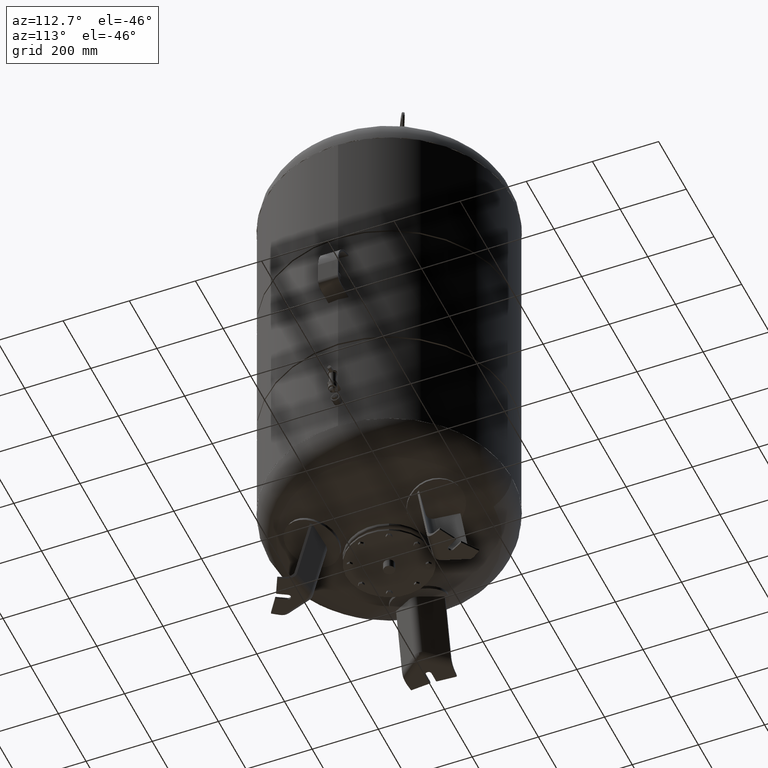
[diagram: clean part render]
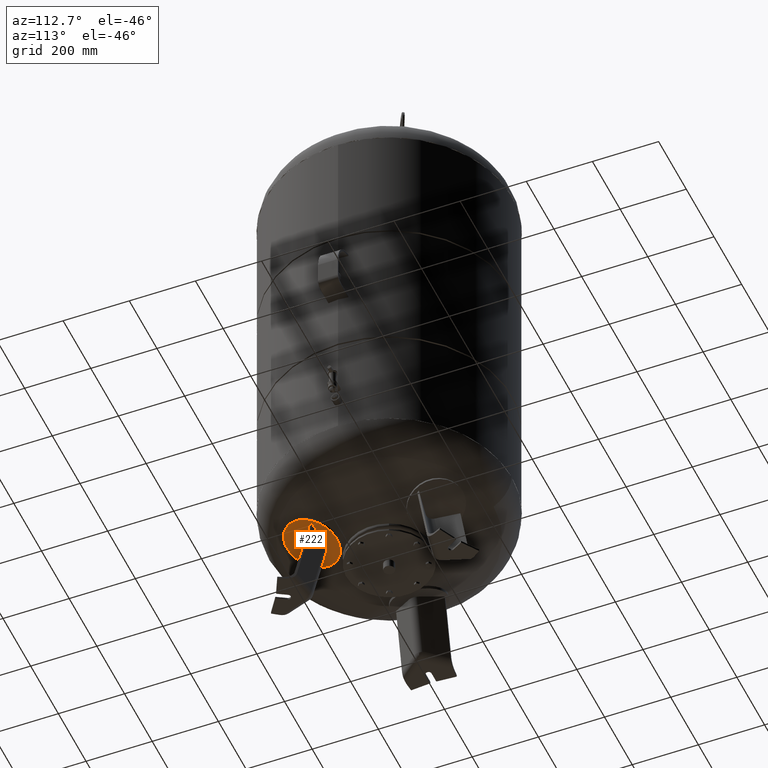
[diagram: same view with one face highlighted and labeled with its STEP entity id]
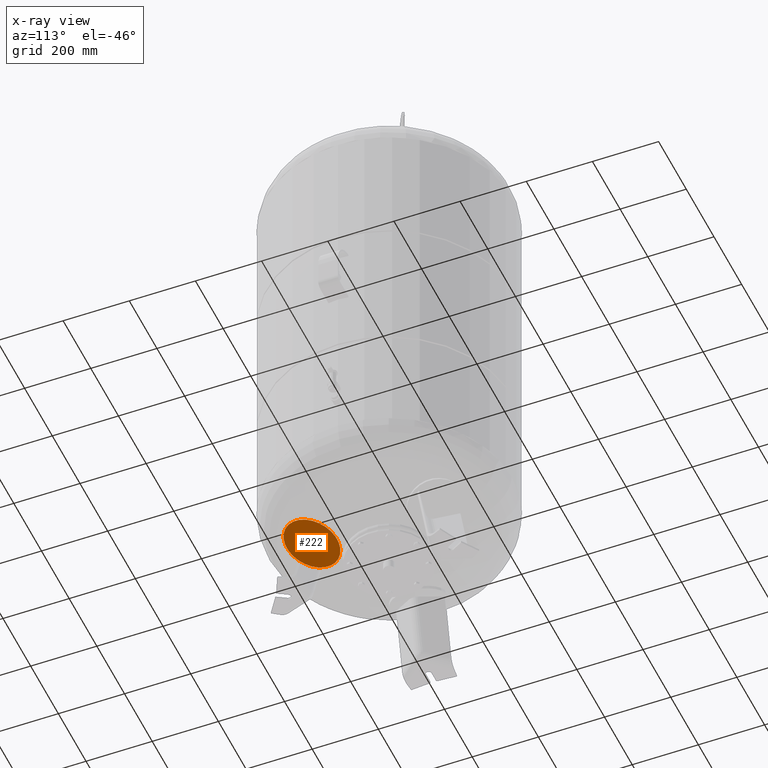
[diagram: x-ray of the same camera — body ghosted, the highlighted face saturated]
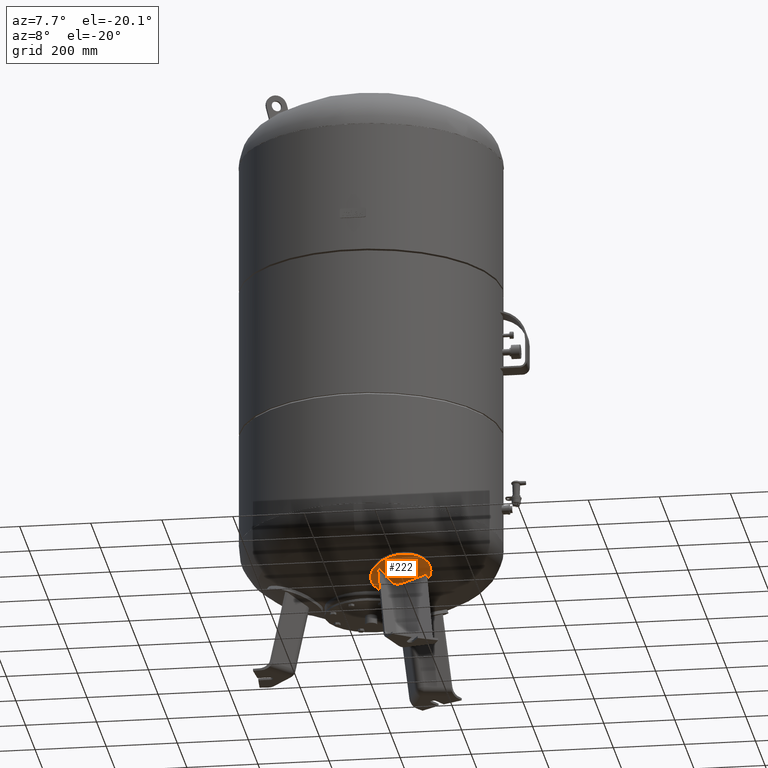
[diagram: same view with one face highlighted and labeled with its STEP entity id]
A machine part, auxiliary view. The second image highlights one B-rep face of the part: STEP entity #222.
The next image is the same camera in x-ray: the body ghosted, the highlighted face saturated — about 0% of this face is hidden behind the body in this view.
A second angle (auxiliary view) of the same face is appended — the face is thin or edge-on in the first view.
In plain terms, the highlighted spherical surface has radius 594 mm.
Its self-contained STEP definition (entity closure, byte-faithful):
#130=CARTESIAN_POINT('',(148.246026532526660,-256.769650287754130,254.194420566592950));
#131=VERTEX_POINT('',#130);
#140=CARTESIAN_POINT('',(68.891690280264470,-119.323908097931210,193.271869143891820));
#141=VERTEX_POINT('',#140);
#142=CARTESIAN_POINT('',(108.568858406395550,-188.046779192842680,223.733144855242360));
#143=DIRECTION('',(0.179183974772650,-0.310355748208370,-0.933580426497202));
#144=DIRECTION('',(0.466790213248601,-0.808504365822488,0.358367949545300));
#145=AXIS2_PLACEMENT_3D('',#142,#143,#144);
#146=CIRCLE('',#145,85.0);
#147=EDGE_CURVE('',#141,#131,#146,.T.);
#203=CARTESIAN_POINT('',(108.568858406395550,-188.046779192842680,223.733144855242360));
#204=DIRECTION('',(0.179183974772650,-0.310355748208370,-0.933580426497202));
#205=DIRECTION('',(0.466790213248601,-0.808504365822488,0.358367949545300));
#206=AXIS2_PLACEMENT_3D('',#203,#204,#205);
#207=CIRCLE('',#206,85.0);
#208=EDGE_CURVE('',#131,#141,#207,.T.);
#213=CARTESIAN_POINT('',(3.228948043601150,-5.592702379731747,772.572841979124180));
#214=DIRECTION('',(-0.866025403784439,-0.500000000000000,-1.554724E-016));
#215=DIRECTION('',(0.466790213248601,-0.808504365822488,0.358367949545300));
#216=AXIS2_PLACEMENT_3D('',#213,#214,#215);
#217=SPHERICAL_SURFACE('',#216,594.0);
#218=ORIENTED_EDGE('',*,*,#208,.T.);
#219=ORIENTED_EDGE('',*,*,#147,.T.);
#220=EDGE_LOOP('',(#218,#219));
#221=FACE_OUTER_BOUND('',#220,.T.);
#222=ADVANCED_FACE('',(#221),#217,.T.);